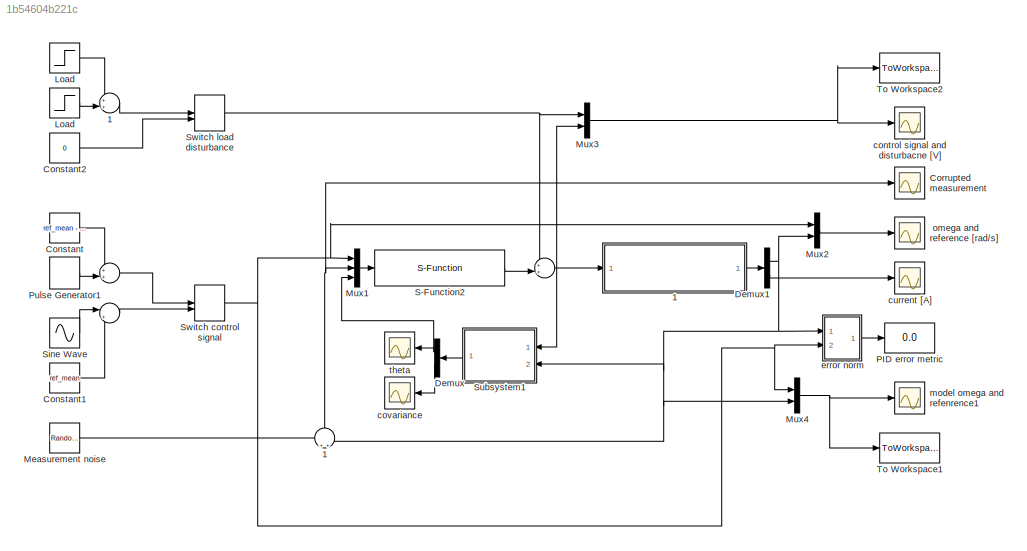
MODEL slx_1b54604b221c
KIND model
CONFIG AbsTol = auto
CONFIG FixedStep = auto
CONFIG MaxStep = auto
CONFIG MinStep = auto
CONFIG RelTol = 1e-3
CONFIG SampleTimeConstraint = Unconstrained
CONFIG Solver = VariableStepAuto
CONFIG SolverMode = Auto
CONFIG SolverName = VariableStepAuto
CONFIG StartTime = 0.0
CONFIG StopTime = 2
BLOCK [Sum]  
  IconShape = round
  InputSameDT = off
  Inputs = ++|
  OutDataTypeStr = Inherit: Inherit via internal rule
  Ports = [2, 1]
  SaturateOnIntegerOverflow = off
BLOCK [Sum]       
  IconShape = round
  InputSameDT = off
  Inputs = ++|
  OutDataTypeStr = Inherit: Inherit via internal rule
  Ports = [2, 1]
  SaturateOnIntegerOverflow = off
BLOCK [Sum]        
  IconShape = round
  InputSameDT = off
  Inputs = |++
  OutDataTypeStr = Inherit: Inherit via internal rule
  Ports = [2, 1]
  SaturateOnIntegerOverflow = off
BLOCK [Sum]        1
  IconShape = round
  InputSameDT = off
  OutDataTypeStr = Inherit: Inherit via internal rule
  Ports = [2, 1]
  SaturateOnIntegerOverflow = off
BLOCK [Sum]       1
  IconShape = round
  InputSameDT = off
  Inputs = ++|
  OutDataTypeStr = Inherit: Inherit via internal rule
  Ports = [2, 1]
  SaturateOnIntegerOverflow = off
BLOCK [ModelReference]    1
  ModelNameDialog = rotor_model_c.slx
  ModelReferenceVersion = 1.30
  Ports = [1, 1]
  Variant = off
BLOCK [Scope]  omega and reference [rad//s]
  Ports = [1]
  ScopeSpecificationString = Simulink.scopes.TimeScopeBlockCfg('CurrentConfiguration', extmgr.ConfigurationSet(extmgr.Configuration('Core','General UI',true),extmgr.Configuration('Core','Source UI',true),extmgr.Configuration('Sources','WiredSimulink',true,'DataLoggingVariableName','ScopeData1'),extmgr.Configuration('Visuals','Time Domain',true,'SerializedDisplays',{struct('MinYLimReal','-75707490916435616529002936146015583612...<+2345ch>
BLOCK [Constant] Constant
  Value = ref_mean - ref_amp
BLOCK [Constant] Constant1
  Value = ref_mean
BLOCK [Constant] Constant2
  Value = 0
BLOCK [Scope] Corrupted measurement
  Ports = [1]
  ScopeSpecificationString = C++SS(StrPVP('SaveName','ScopeData2'))
BLOCK [Demux] Demux
  DisplayOption = bar
  Outputs = [4,1]
  Ports = [1, 2]
BLOCK [Demux] Demux1
  DisplayOption = bar
  Outputs = 2
  Ports = [1, 2]
BLOCK [Step] Load
  After = -load_amp
  SampleTime = 0
  Time = load_finish
BLOCK [Step] Load 
  After = load_amp
  SampleTime = 0
  Time = load_start
BLOCK [RandomNumber] Measurement noise
  SampleTime = rotor_h
  Variance = measurement_variance
BLOCK [Mux] Mux1
  DisplayOption = bar
  Inputs = 3
  Ports = [3, 1]
BLOCK [Mux] Mux2
  DisplayOption = bar
  Inputs = 2
  Ports = [2, 1]
BLOCK [Mux] Mux3
  DisplayOption = bar
  Inputs = 2
  Ports = [2, 1]
BLOCK [Mux] Mux4
  DisplayOption = bar
  Inputs = 2
  Ports = [2, 1]
BLOCK [Display] PID error metric
  Decimation = 1
  Ports = [1]
BLOCK [DiscretePulseGenerator] Pulse Generator1
  Amplitude = ref_amp*2
  Period = pulse_period
  Ports = [0, 1]
  PulseType = Time based
  PulseWidth = 50
BLOCK [S-Function] S-Function2
  EnableBusSupport = off
  FunctionName = sfunc_rotor_APPC_d
  Parameters = AMOPPCparam
  Ports = [1, 1]
  SFunctionDeploymentMode = off
BLOCK [Sin] Sine Wave
  Amplitude = 200
  Frequency = sinusoid_frequency
  Ports = [0, 1]
  SampleTime = 0
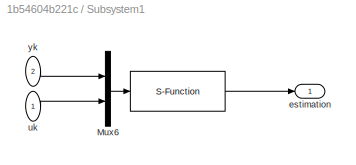
BLOCK [SubSystem] Subsystem1
  Ports = [2, 1]
  RequestExecContextInheritance = off
  Variant = off
BLOCK [S-Function] Subsystem1/   
  EnableBusSupport = off
  FunctionName = sfunc_trRLS_d
  Parameters = trRLSparam
  Ports = [1, 1]
  SFunctionDeploymentMode = off
BLOCK [Mux] Subsystem1/Mux6
  DisplayOption = bar
  Inputs = 2
  Ports = [2, 1]
BLOCK [Outport] Subsystem1/estimation
  IconDisplay = Port number
BLOCK [Inport] Subsystem1/uk
  IconDisplay = Port number
BLOCK [Inport] Subsystem1/yk
  IconDisplay = Port number
  Port = 2
BLOCK [ManualSwitch] Switch control signal
  CurrentSetting = 0
BLOCK [ManualSwitch] Switch load disturbance
  CurrentSetting = 0
BLOCK [ToWorkspace] To Workspace1
  FixptAsFi = on
  MaxDataPoints = inf
  Ports = [1]
  SampleTime = -1
  Save2DSignal = 3-D array (concatenate along third dimension)
  SaveFormat = Timeseries
  VariableName = omegaref
BLOCK [ToWorkspace] To Workspace2
  FixptAsFi = on
  MaxDataPoints = inf
  Ports = [1]
  SampleTime = -1
  Save2DSignal = 3-D array (concatenate along third dimension)
  SaveFormat = Timeseries
  VariableName = controlsig
BLOCK [Scope] control signal and disturbacne  [V]
  Ports = [1]
  ScopeSpecificationString = Simulink.scopes.TimeScopeBlockCfg('CurrentConfiguration', extmgr.ConfigurationSet(extmgr.Configuration('Core','General UI',true),extmgr.Configuration('Core','Source UI',true),extmgr.Configuration('Sources','WiredSimulink',true,'DataLoggingVariableName','ScopeData3','DataLoggingLimitDataPoints',true,'DataLoggingSaveFormat','Array','DataLoggingDecimation','1','DataLoggingDecimateData',true),extmgr.C...<+2465ch>
BLOCK [Scope] covariance
  Ports = [1]
  ScopeSpecificationString = Simulink.scopes.TimeScopeBlockCfg('CurrentConfiguration', extmgr.ConfigurationSet(extmgr.Configuration('Core','General UI',true),extmgr.Configuration('Core','Source UI',true),extmgr.Configuration('Sources','WiredSimulink',true,'DataLoggingVariableName','ScopeData2'),extmgr.Configuration('Visuals','Time Domain',true,'SerializedDisplays',{struct('MinYLimReal','-624.99852','MaxYLimReal','5624.98665',...<+1411ch>
BLOCK [Scope] current [A]   
  Ports = [1]
  ScopeSpecificationString = Simulink.scopes.TimeScopeBlockCfg('CurrentConfiguration', extmgr.ConfigurationSet(extmgr.Configuration('Core','General UI',true),extmgr.Configuration('Core','Source UI',true),extmgr.Configuration('Sources','WiredSimulink',true,'DataLoggingVariableName','ScopeData4'),extmgr.Configuration('Visuals','Time Domain',true,'SerializedDisplays',{struct('MinYLimReal','-13887970109235981278118998849075815289...<+2313ch>
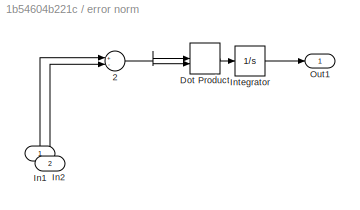
BLOCK [SubSystem] error norm
  Ports = [2, 1]
  RequestExecContextInheritance = off
  Variant = off
BLOCK [Sum] error norm/      2
  InputSameDT = off
  Inputs = +-
  OutDataTypeStr = Inherit: Inherit via internal rule
  Ports = [2, 1]
  SaturateOnIntegerOverflow = off
BLOCK [DotProduct] error norm/Dot Product
  OutDataTypeStr = Inherit: Inherit via internal rule
BLOCK [Inport] error norm/In1
  IconDisplay = Port number
BLOCK [Inport] error norm/In2
  IconDisplay = Port number
  Port = 2
BLOCK [Integrator] error norm/Integrator
  Ports = [1, 1]
BLOCK [Outport] error norm/Out1
  IconDisplay = Port number
BLOCK [Scope] model omega and refenrence1
  Ports = [1]
  ScopeSpecificationString = C++SS(StrPVP('SaveName','ScopeData5'))
BLOCK [Scope] theta
  Ports = [1]
  ScopeSpecificationString = Simulink.scopes.TimeScopeBlockCfg('CurrentConfiguration', extmgr.ConfigurationSet(extmgr.Configuration('Core','General UI',true),extmgr.Configuration('Core','Source UI',true),extmgr.Configuration('Sources','WiredSimulink',true,'DataLoggingVariableName','ScopeData1'),extmgr.Configuration('Visuals','Time Domain',true,'SerializedDisplays',{struct('MinYLimReal','-228837169944484.375','MaxYLimReal','18...<+1531ch>
NET        1:1 -> Corrupted measurement:1, Mux1:2
LINE        :1 -> Switch control signal:2
LINE       1:1 -> Switch load disturbance:1
LINE       :1 -> Switch control signal:1
LINE    1:1 -> Demux1:1
NET  :1 ->    1:1, Mux3:2, Subsystem1:1
LINE Constant1:1 ->        :2
LINE Constant2:1 -> Switch load disturbance:2
LINE Constant:1 ->       :1
NET Demux1:1 ->        1:2, Mux2:2, Mux4:2, Subsystem1:2, error norm:1
LINE Demux1:2 -> current [A]   :1
NET Demux:1 -> Mux1:3, theta:1
LINE Demux:2 -> covariance:1
LINE Load :1 ->       1:1
LINE Load:1 ->       1:2
LINE Measurement noise:1 ->        1:1
LINE Mux1:1 -> S-Function2:1
LINE Mux2:1 ->  omega and reference [rad//s]:1
NET Mux3:1 -> To Workspace2:1, control signal and disturbacne  [V]:1
NET Mux4:1 -> To Workspace1:1, model omega and refenrence1:1
LINE Pulse Generator1:1 ->       :2
LINE S-Function2:1 ->  :2
LINE Sine Wave:1 ->        :1
LINE Subsystem1/   :1 -> Subsystem1/estimation:1
LINE Subsystem1/Mux6:1 -> Subsystem1/   :1
LINE Subsystem1/uk:1 -> Subsystem1/Mux6:2
LINE Subsystem1/yk:1 -> Subsystem1/Mux6:1
LINE Subsystem1:1 -> Demux:1
NET Switch control signal:1 -> Mux1:1, Mux2:1, Mux4:1, error norm:2
NET Switch load disturbance:1 ->  :1, Mux3:1
NET error norm/      2:1 -> error norm/Dot Product:1, error norm/Dot Product:2
LINE error norm/Dot Product:1 -> error norm/Integrator:1
LINE error norm/In1:1 -> error norm/      2:1
LINE error norm/In2:1 -> error norm/      2:2
LINE error norm/Integrator:1 -> error norm/Out1:1
LINE error norm:1 -> PID error metric:1
note: NET lines group one-source signal fan-out (src -> all destinations, sorted); 1:1 wires keep LINE
